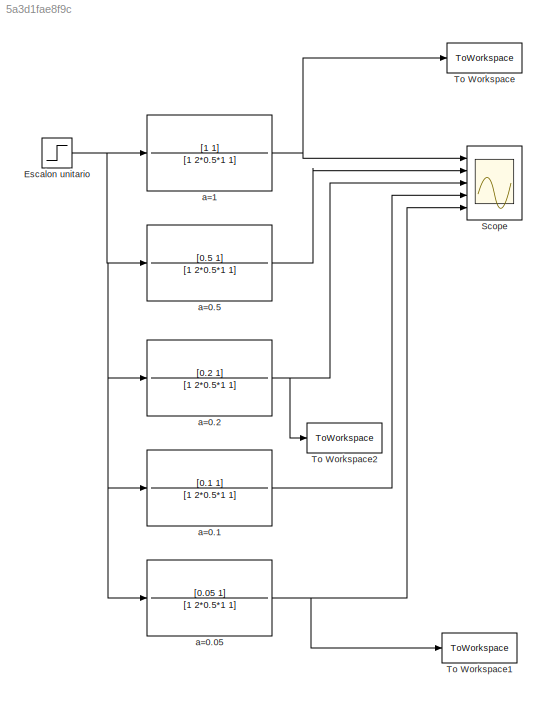
MODEL slx_5a3d1fae8f9c
KIND model
CONFIG AbsTol = auto
CONFIG EnableMultiTasking = off
CONFIG FixedStep = auto
CONFIG MaxStep = auto
CONFIG MinStep = auto
CONFIG RelTol = 1e-3
CONFIG SampleTimeConstraint = Unconstrained
CONFIG Solver = VariableStepAuto
CONFIG SolverName = VariableStepAuto
CONFIG StartTime = 0.0
CONFIG StopTime = 20.0
BLOCK [Step] Escalon unitario
  SampleTime = 0.01
BLOCK [Scope] Scope
  Floating = off
  NumInputPorts = 5
  Ports = [5]
  ScopeSpecificationString = Simulink.scopes.TimeScopeBlockCfg('CurrentConfiguration', extmgr.ConfigurationSet(extmgr.Configuration('Core','General UI',true),extmgr.Configuration('Core','Source UI',true),extmgr.Configuration('Sources','WiredSimulink',true),extmgr.Configuration('Visuals','Time Domain',true,'SerializedDisplays',{struct('MinYLimReal','-0.1623','MaxYLimReal','1.46074','YLabelReal','Signal Value','MinYLimMag','0.0...<+1454ch>
BLOCK [ToWorkspace] To Workspace
  FixptAsFi = on
  MaxDataPoints = inf
  Ports = [1]
  SampleTime = -1
  Save2DSignal = 3-D array (concatenate along third dimension)
  VariableName = a_1
BLOCK [ToWorkspace] To Workspace1
  FixptAsFi = on
  MaxDataPoints = inf
  Ports = [1]
  SampleTime = -1
  Save2DSignal = 3-D array (concatenate along third dimension)
  VariableName = a_005
BLOCK [ToWorkspace] To Workspace2
  FixptAsFi = on
  MaxDataPoints = inf
  Ports = [1]
  SampleTime = -1
  Save2DSignal = 3-D array (concatenate along third dimension)
  VariableName = a_02
BLOCK [TransferFcn] a=0.05
  Denominator = [1 2*0.5*1 1]
  Numerator = [0.05 1]
BLOCK [TransferFcn] a=0.1
  Denominator = [1 2*0.5*1 1]
  Numerator = [0.1 1]
BLOCK [TransferFcn] a=0.2
  Denominator = [1 2*0.5*1 1]
  Numerator = [0.2 1]
BLOCK [TransferFcn] a=0.5
  Denominator = [1 2*0.5*1 1]
  Numerator = [0.5 1]
BLOCK [TransferFcn] a=1
  Denominator = [1 2*0.5*1 1]
  Numerator = [1 1]
NET Escalon unitario:1 -> a=0.05:1, a=0.1:1, a=0.2:1, a=0.5:1, a=1:1
NET a=0.05:1 -> Scope:5, To Workspace1:1
LINE a=0.1:1 -> Scope:4
NET a=0.2:1 -> Scope:3, To Workspace2:1
LINE a=0.5:1 -> Scope:2
NET a=1:1 -> Scope:1, To Workspace:1
note: NET lines group one-source signal fan-out (src -> all destinations, sorted); 1:1 wires keep LINE
